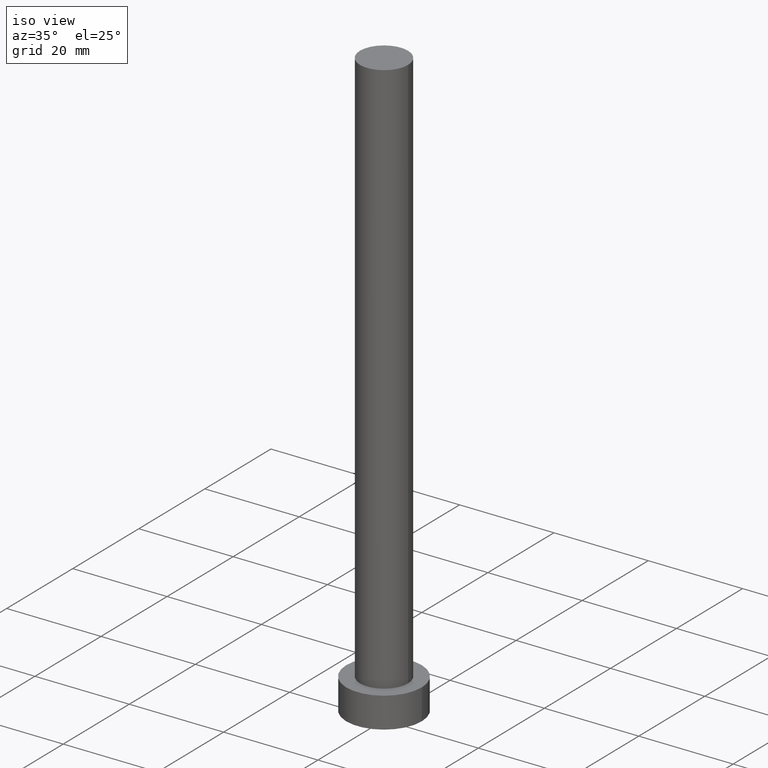
[diagram: clean part render]
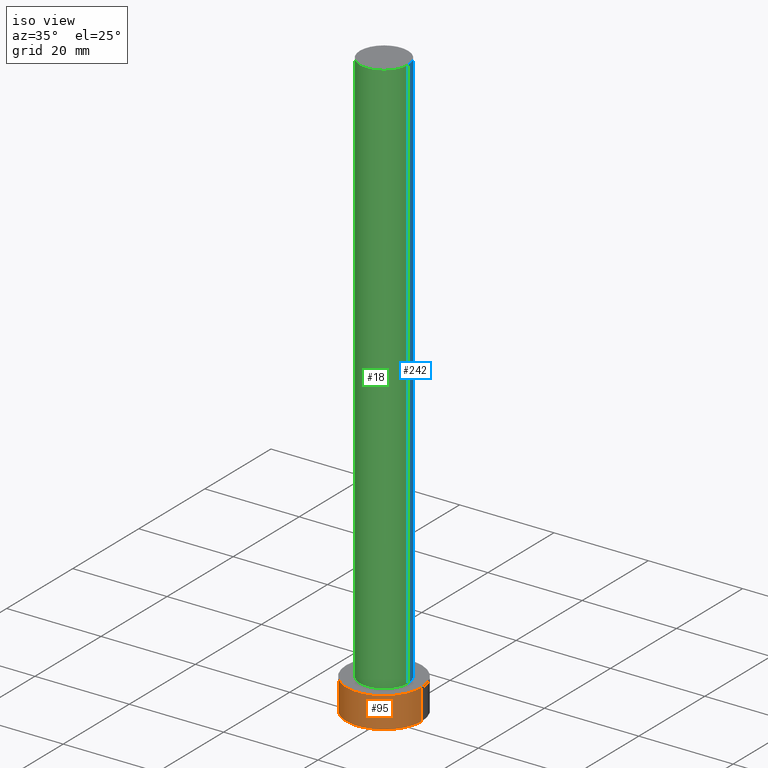
[diagram: same view with three faces highlighted in distinct colors, each labeled with its STEP entity id]
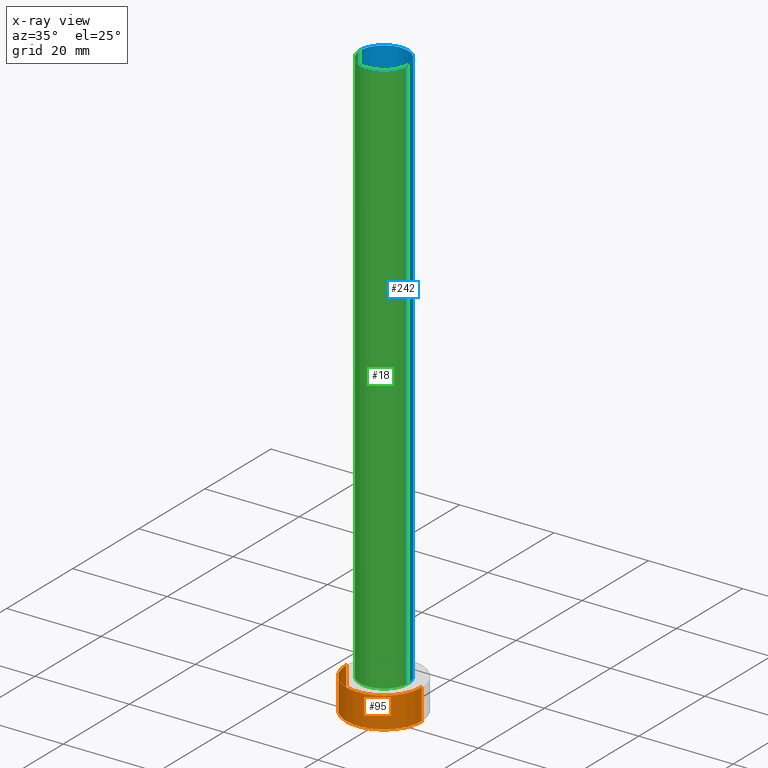
[diagram: x-ray of the same camera — body ghosted, the three highlighted faces saturated]
A machine part, iso view with three faces highlighted in distinct colors.
The next image is the same camera in x-ray (body ghosted, the three faces saturated) — at least one of them is partly hidden behind the body in this view.
Their STEP definitions:

[orange] entity #95 — the highlighted cylindrical surface (partial cylindrical patch) has radius 8 mm, axis along (-0, -0, -1).
#1 = EDGE_CURVE ( 'NONE', #124, #168, #237, .T. ) ;
#2 = DIRECTION ( 'NONE',  ( -0.000000000000000000, -0.000000000000000000, -1.000000000000000000 ) ) ;
#7 = EDGE_CURVE ( 'NONE', #184, #96, #202, .T. ) ;
#32 = DIRECTION ( 'NONE',  ( 1.000000000000000000, 0.000000000000000000, 0.000000000000000000 ) ) ;
#34 = EDGE_LOOP ( 'NONE', ( #241, #235, #204, #87 ) ) ;
#37 = CYLINDRICAL_SURFACE ( 'NONE', #109, 8.000000000000000000 ) ;
#56 = DIRECTION ( 'NONE',  ( -0.000000000000000000, -0.000000000000000000, -1.000000000000000000 ) ) ;
#72 = DIRECTION ( 'NONE',  ( 1.000000000000000000, 0.000000000000000000, 0.000000000000000000 ) ) ;
#77 = CARTESIAN_POINT ( 'NONE',  ( -8.000000000000000000, 0.000000000000000000, 6.500000000000000000 ) ) ;
#79 = LINE ( 'NONE', #212, #254 ) ;
#87 = ORIENTED_EDGE ( 'NONE', *, *, #1, .T. ) ;
#95 = ADVANCED_FACE ( 'NONE', ( #208 ), #37, .T. ) ;
#96 = VERTEX_POINT ( 'NONE', #170 ) ;
#101 = EDGE_CURVE ( 'NONE', #184, #124, #250, .T. ) ;
#109 = AXIS2_PLACEMENT_3D ( 'NONE', #113, #141, #190 ) ;
#110 = DIRECTION ( 'NONE',  ( 0.000000000000000000, 0.000000000000000000, 1.000000000000000000 ) ) ;
#113 = CARTESIAN_POINT ( 'NONE',  ( 0.000000000000000000, 0.000000000000000000, 6.500000000000000000 ) ) ;
#120 = AXIS2_PLACEMENT_3D ( 'NONE', #128, #143, #32 ) ;
#124 = VERTEX_POINT ( 'NONE', #131 ) ;
#126 = AXIS2_PLACEMENT_3D ( 'NONE', #189, #110, #72 ) ;
#128 = CARTESIAN_POINT ( 'NONE',  ( 0.000000000000000000, 0.000000000000000000, 6.500000000000000000 ) ) ;
#131 = CARTESIAN_POINT ( 'NONE',  ( -8.000000000000000000, 0.000000000000000000, 0.000000000000000000 ) ) ;
#141 = DIRECTION ( 'NONE',  ( -0.000000000000000000, -0.000000000000000000, -1.000000000000000000 ) ) ;
#143 = DIRECTION ( 'NONE',  ( 0.000000000000000000, 0.000000000000000000, 1.000000000000000000 ) ) ;
#168 = VERTEX_POINT ( 'NONE', #215 ) ;
#170 = CARTESIAN_POINT ( 'NONE',  ( 8.000000000000000000, 9.797174393178823685E-16, 6.500000000000000000 ) ) ;
#184 = VERTEX_POINT ( 'NONE', #251 ) ;
#189 = CARTESIAN_POINT ( 'NONE',  ( 0.000000000000000000, 0.000000000000000000, 0.000000000000000000 ) ) ;
#190 = DIRECTION ( 'NONE',  ( -1.000000000000000000, 0.000000000000000000, 0.000000000000000000 ) ) ;
#196 = EDGE_CURVE ( 'NONE', #96, #168, #79, .T. ) ;
#199 = VECTOR ( 'NONE', #56, 1000.000000000000000 ) ;
#202 = CIRCLE ( 'NONE', #120, 8.000000000000000000 ) ;
#204 = ORIENTED_EDGE ( 'NONE', *, *, #101, .T. ) ;
#208 = FACE_OUTER_BOUND ( 'NONE', #34, .T. ) ;
#212 = CARTESIAN_POINT ( 'NONE',  ( 8.000000000000000000, 9.797174393178823685E-16, 6.500000000000000000 ) ) ;
#215 = CARTESIAN_POINT ( 'NONE',  ( 8.000000000000000000, 9.797174393178823685E-16, 0.000000000000000000 ) ) ;
#235 = ORIENTED_EDGE ( 'NONE', *, *, #7, .F. ) ;
#237 = CIRCLE ( 'NONE', #126, 8.000000000000000000 ) ;
#241 = ORIENTED_EDGE ( 'NONE', *, *, #196, .F. ) ;
#250 = LINE ( 'NONE', #77, #199 ) ;
#251 = CARTESIAN_POINT ( 'NONE',  ( -8.000000000000000000, 0.000000000000000000, 6.500000000000000000 ) ) ;
#254 = VECTOR ( 'NONE', #2, 1000.000000000000000 ) ;

[blue] entity #242 — the highlighted cylindrical surface (edge-blend (fillet) strip) has radius 5.1 mm, axis along (-0, -0, -1).
#15 = VERTEX_POINT ( 'NONE', #106 ) ;
#17 = ORIENTED_EDGE ( 'NONE', *, *, #209, .F. ) ;
#22 = CARTESIAN_POINT ( 'NONE',  ( -5.100000000000001421, 0.000000000000000000, 125.0000000000000000 ) ) ;
#35 = VECTOR ( 'NONE', #152, 1000.000000000000000 ) ;
#40 = DIRECTION ( 'NONE',  ( 1.000000000000000000, 0.000000000000000000, 0.000000000000000000 ) ) ;
#41 = CARTESIAN_POINT ( 'NONE',  ( -5.100000000000001421, 0.000000000000000000, 6.500000000000000000 ) ) ;
#42 = VECTOR ( 'NONE', #99, 1000.000000000000000 ) ;
#63 = DIRECTION ( 'NONE',  ( -0.000000000000000000, -0.000000000000000000, -1.000000000000000000 ) ) ;
#68 = ORIENTED_EDGE ( 'NONE', *, *, #191, .T. ) ;
#81 = DIRECTION ( 'NONE',  ( 1.000000000000000000, 0.000000000000000000, 0.000000000000000000 ) ) ;
#92 = VERTEX_POINT ( 'NONE', #248 ) ;
#99 = DIRECTION ( 'NONE',  ( -0.000000000000000000, -0.000000000000000000, -1.000000000000000000 ) ) ;
#100 = LINE ( 'NONE', #22, #35 ) ;
#104 = AXIS2_PLACEMENT_3D ( 'NONE', #231, #63, #132 ) ;
#106 = CARTESIAN_POINT ( 'NONE',  ( -5.100000000000001421, 0.000000000000000000, 125.0000000000000000 ) ) ;
#108 = CIRCLE ( 'NONE', #192, 5.100000000000001421 ) ;
#111 = ORIENTED_EDGE ( 'NONE', *, *, #138, .F. ) ;
#115 = AXIS2_PLACEMENT_3D ( 'NONE', #229, #227, #81 ) ;
#116 = CARTESIAN_POINT ( 'NONE',  ( 0.000000000000000000, 0.000000000000000000, 125.0000000000000000 ) ) ;
#119 = CYLINDRICAL_SURFACE ( 'NONE', #104, 5.100000000000001421 ) ;
#132 = DIRECTION ( 'NONE',  ( -1.000000000000000000, 0.000000000000000000, 0.000000000000000000 ) ) ;
#134 = DIRECTION ( 'NONE',  ( 0.000000000000000000, 0.000000000000000000, 1.000000000000000000 ) ) ;
#138 = EDGE_CURVE ( 'NONE', #15, #225, #100, .T. ) ;
#152 = DIRECTION ( 'NONE',  ( -0.000000000000000000, -0.000000000000000000, -1.000000000000000000 ) ) ;
#153 = CARTESIAN_POINT ( 'NONE',  ( 5.100000000000001421, 6.245698675651502811E-16, 6.500000000000000000 ) ) ;
#155 = FACE_OUTER_BOUND ( 'NONE', #247, .T. ) ;
#191 = EDGE_CURVE ( 'NONE', #92, #223, #197, .T. ) ;
#192 = AXIS2_PLACEMENT_3D ( 'NONE', #116, #134, #40 ) ;
#197 = LINE ( 'NONE', #233, #42 ) ;
#209 = EDGE_CURVE ( 'NONE', #92, #15, #108, .T. ) ;
#223 = VERTEX_POINT ( 'NONE', #153 ) ;
#225 = VERTEX_POINT ( 'NONE', #41 ) ;
#227 = DIRECTION ( 'NONE',  ( 0.000000000000000000, 0.000000000000000000, 1.000000000000000000 ) ) ;
#229 = CARTESIAN_POINT ( 'NONE',  ( 0.000000000000000000, 0.000000000000000000, 6.500000000000000000 ) ) ;
#231 = CARTESIAN_POINT ( 'NONE',  ( 0.000000000000000000, 0.000000000000000000, 125.0000000000000000 ) ) ;
#233 = CARTESIAN_POINT ( 'NONE',  ( 5.100000000000001421, 6.245698675651502811E-16, 125.0000000000000000 ) ) ;
#236 = EDGE_CURVE ( 'NONE', #223, #225, #249, .T. ) ;
#238 = ORIENTED_EDGE ( 'NONE', *, *, #236, .T. ) ;
#242 = ADVANCED_FACE ( 'NONE', ( #155 ), #119, .T. ) ;
#247 = EDGE_LOOP ( 'NONE', ( #17, #68, #238, #111 ) ) ;
#248 = CARTESIAN_POINT ( 'NONE',  ( 5.100000000000001421, 6.245698675651502811E-16, 125.0000000000000000 ) ) ;
#249 = CIRCLE ( 'NONE', #115, 5.100000000000001421 ) ;

[green] entity #18 — the highlighted cylindrical surface (edge-blend (fillet) strip) has radius 5.1 mm, axis along (-0, -0, -1).
#14 = CIRCLE ( 'NONE', #186, 5.100000000000001421 ) ;
#15 = VERTEX_POINT ( 'NONE', #106 ) ;
#18 = ADVANCED_FACE ( 'NONE', ( #226 ), #74, .T. ) ;
#21 = CIRCLE ( 'NONE', #84, 5.100000000000001421 ) ;
#22 = CARTESIAN_POINT ( 'NONE',  ( -5.100000000000001421, 0.000000000000000000, 125.0000000000000000 ) ) ;
#35 = VECTOR ( 'NONE', #152, 1000.000000000000000 ) ;
#36 = DIRECTION ( 'NONE',  ( 1.000000000000000000, 0.000000000000000000, 0.000000000000000000 ) ) ;
#41 = CARTESIAN_POINT ( 'NONE',  ( -5.100000000000001421, 0.000000000000000000, 6.500000000000000000 ) ) ;
#42 = VECTOR ( 'NONE', #99, 1000.000000000000000 ) ;
#64 = DIRECTION ( 'NONE',  ( 0.000000000000000000, 0.000000000000000000, 1.000000000000000000 ) ) ;
#74 = CYLINDRICAL_SURFACE ( 'NONE', #80, 5.100000000000001421 ) ;
#75 = EDGE_LOOP ( 'NONE', ( #159, #206, #158, #219 ) ) ;
#76 = EDGE_CURVE ( 'NONE', #225, #223, #14, .T. ) ;
#80 = AXIS2_PLACEMENT_3D ( 'NONE', #148, #187, #221 ) ;
#84 = AXIS2_PLACEMENT_3D ( 'NONE', #98, #64, #97 ) ;
#92 = VERTEX_POINT ( 'NONE', #248 ) ;
#97 = DIRECTION ( 'NONE',  ( 1.000000000000000000, 0.000000000000000000, 0.000000000000000000 ) ) ;
#98 = CARTESIAN_POINT ( 'NONE',  ( 0.000000000000000000, 0.000000000000000000, 125.0000000000000000 ) ) ;
#99 = DIRECTION ( 'NONE',  ( -0.000000000000000000, -0.000000000000000000, -1.000000000000000000 ) ) ;
#100 = LINE ( 'NONE', #22, #35 ) ;
#106 = CARTESIAN_POINT ( 'NONE',  ( -5.100000000000001421, 0.000000000000000000, 125.0000000000000000 ) ) ;
#138 = EDGE_CURVE ( 'NONE', #15, #225, #100, .T. ) ;
#148 = CARTESIAN_POINT ( 'NONE',  ( 0.000000000000000000, 0.000000000000000000, 125.0000000000000000 ) ) ;
#152 = DIRECTION ( 'NONE',  ( -0.000000000000000000, -0.000000000000000000, -1.000000000000000000 ) ) ;
#153 = CARTESIAN_POINT ( 'NONE',  ( 5.100000000000001421, 6.245698675651502811E-16, 6.500000000000000000 ) ) ;
#158 = ORIENTED_EDGE ( 'NONE', *, *, #138, .T. ) ;
#159 = ORIENTED_EDGE ( 'NONE', *, *, #191, .F. ) ;
#162 = CARTESIAN_POINT ( 'NONE',  ( 0.000000000000000000, 0.000000000000000000, 6.500000000000000000 ) ) ;
#186 = AXIS2_PLACEMENT_3D ( 'NONE', #162, #207, #36 ) ;
#187 = DIRECTION ( 'NONE',  ( -0.000000000000000000, -0.000000000000000000, -1.000000000000000000 ) ) ;
#191 = EDGE_CURVE ( 'NONE', #92, #223, #197, .T. ) ;
#197 = LINE ( 'NONE', #233, #42 ) ;
#206 = ORIENTED_EDGE ( 'NONE', *, *, #230, .F. ) ;
#207 = DIRECTION ( 'NONE',  ( 0.000000000000000000, 0.000000000000000000, 1.000000000000000000 ) ) ;
#219 = ORIENTED_EDGE ( 'NONE', *, *, #76, .T. ) ;
#221 = DIRECTION ( 'NONE',  ( -1.000000000000000000, 0.000000000000000000, 0.000000000000000000 ) ) ;
#223 = VERTEX_POINT ( 'NONE', #153 ) ;
#225 = VERTEX_POINT ( 'NONE', #41 ) ;
#226 = FACE_OUTER_BOUND ( 'NONE', #75, .T. ) ;
#230 = EDGE_CURVE ( 'NONE', #15, #92, #21, .T. ) ;
#233 = CARTESIAN_POINT ( 'NONE',  ( 5.100000000000001421, 6.245698675651502811E-16, 125.0000000000000000 ) ) ;
#248 = CARTESIAN_POINT ( 'NONE',  ( 5.100000000000001421, 6.245698675651502811E-16, 125.0000000000000000 ) ) ;